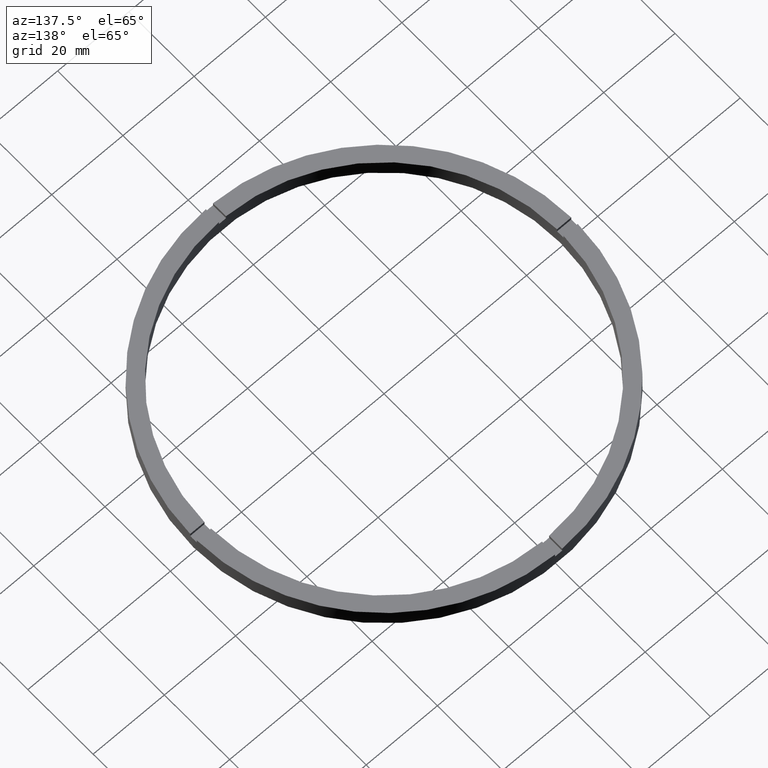
[diagram: clean part render]
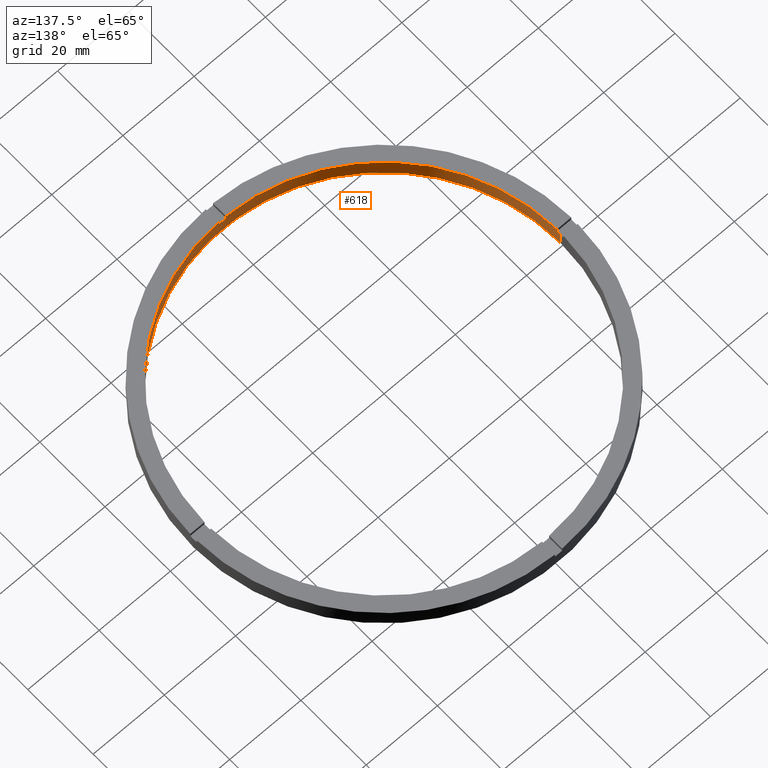
[diagram: same view with one face highlighted and labeled with its STEP entity id]
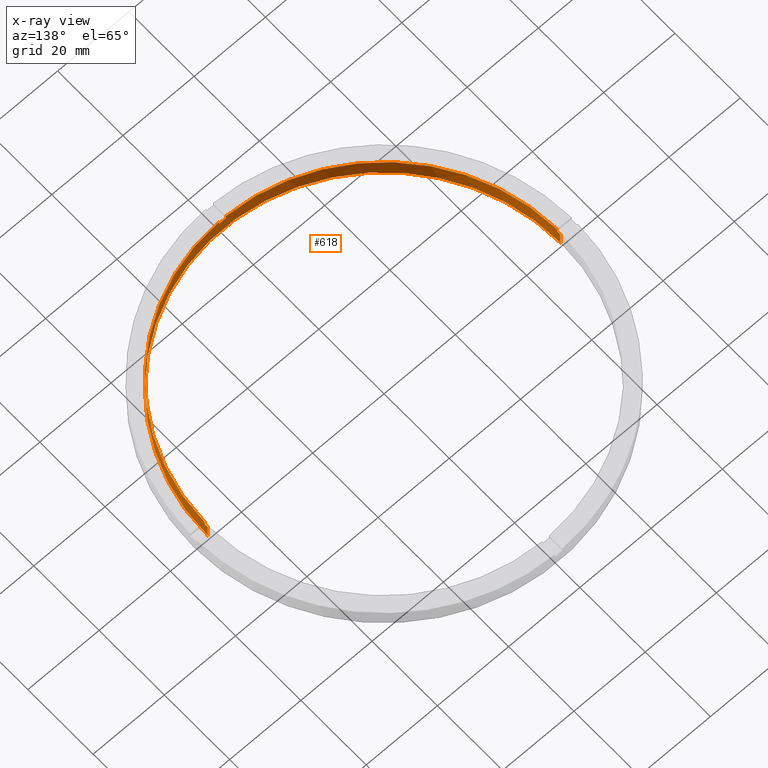
[diagram: x-ray of the same camera — body ghosted, the highlighted face saturated]
A machine part, auxiliary view. The second image highlights one B-rep face of the part: STEP entity #618.
The next image is the same camera in x-ray: the body ghosted, the highlighted face saturated — about 0% of this face is hidden behind the body in this view.
In plain terms, the highlighted cylindrical surface (partial cylindrical patch) has radius 49.5 mm, axis along (-0, -0, -1).
Its self-contained STEP definition (entity closure, byte-faithful):
#6 = EDGE_CURVE ( 'NONE', #144, #432, #218, .T. ) ;
#11 = EDGE_CURVE ( 'NONE', #717, #719, #480, .T. ) ;
#14 = DIRECTION ( 'NONE',  ( -0.000000000000000000, -0.000000000000000000, -1.000000000000000000 ) ) ;
#20 = CARTESIAN_POINT ( 'NONE',  ( 0.000000000000000000, 0.000000000000000000, 4.000000000000000000 ) ) ;
#21 = EDGE_CURVE ( 'NONE', #445, #433, #216, .T. ) ;
#25 = AXIS2_PLACEMENT_3D ( 'NONE', #409, #330, #277 ) ;
#28 = EDGE_CURVE ( 'NONE', #717, #433, #742, .T. ) ;
#78 = DIRECTION ( 'NONE',  ( -0.000000000000000000, -0.000000000000000000, -1.000000000000000000 ) ) ;
#83 = EDGE_CURVE ( 'NONE', #432, #614, #292, .T. ) ;
#89 = DIRECTION ( 'NONE',  ( 1.000000000000000000, 0.000000000000000000, 0.000000000000000000 ) ) ;
#104 = ORIENTED_EDGE ( 'NONE', *, *, #695, .F. ) ;
#113 = AXIS2_PLACEMENT_3D ( 'NONE', #513, #660, #510 ) ;
#114 = LINE ( 'NONE', #434, #124 ) ;
#117 = VECTOR ( 'NONE', #180, 1000.000000000000000 ) ;
#118 = AXIS2_PLACEMENT_3D ( 'NONE', #519, #265, #374 ) ;
#119 = CIRCLE ( 'NONE', #538, 49.50000000000000711 ) ;
#124 = VECTOR ( 'NONE', #14, 1000.000000000000000 ) ;
#133 = CYLINDRICAL_SURFACE ( 'NONE', #268, 49.50000000000000711 ) ;
#134 = CARTESIAN_POINT ( 'NONE',  ( 49.48989795907849043, -1.000000000000154765, 5.000000000000000000 ) ) ;
#144 = VERTEX_POINT ( 'NONE', #261 ) ;
#148 = CIRCLE ( 'NONE', #406, 49.50000000000000711 ) ;
#167 = ORIENTED_EDGE ( 'NONE', *, *, #593, .F. ) ;
#169 = DIRECTION ( 'NONE',  ( -0.000000000000000000, 0.000000000000000000, 1.000000000000000000 ) ) ;
#170 = ORIENTED_EDGE ( 'NONE', *, *, #350, .F. ) ;
#180 = DIRECTION ( 'NONE',  ( 0.000000000000000000, 0.000000000000000000, 1.000000000000000000 ) ) ;
#184 = CARTESIAN_POINT ( 'NONE',  ( 0.9999999999998436806, -49.48989795907849043, 5.000000000000000000 ) ) ;
#195 = ORIENTED_EDGE ( 'NONE', *, *, #21, .F. ) ;
#208 = ORIENTED_EDGE ( 'NONE', *, *, #83, .T. ) ;
#216 = LINE ( 'NONE', #262, #484 ) ;
#218 = CIRCLE ( 'NONE', #304, 49.50000000000000711 ) ;
#228 = CARTESIAN_POINT ( 'NONE',  ( -49.48989795907849043, -1.000000000000031974, 5.000000000000000000 ) ) ;
#234 = CARTESIAN_POINT ( 'NONE',  ( 0.9999999999998436806, -49.48989795907849043, 5.000000000000000000 ) ) ;
#235 = DIRECTION ( 'NONE',  ( -0.000000000000000000, -0.000000000000000000, -1.000000000000000000 ) ) ;
#244 = CARTESIAN_POINT ( 'NONE',  ( 0.000000000000000000, 0.000000000000000000, 4.000000000000000000 ) ) ;
#261 = CARTESIAN_POINT ( 'NONE',  ( 49.48989795907849043, -1.000000000000154765, 4.000000000000000000 ) ) ;
#262 = CARTESIAN_POINT ( 'NONE',  ( -1.000000000000156319, -49.48989795907849043, 5.000000000000000000 ) ) ;
#265 = DIRECTION ( 'NONE',  ( 0.000000000000000000, 0.000000000000000000, 1.000000000000000000 ) ) ;
#268 = AXIS2_PLACEMENT_3D ( 'NONE', #333, #738, #533 ) ;
#274 = DIRECTION ( 'NONE',  ( 1.000000000000000000, 0.000000000000000000, 0.000000000000000000 ) ) ;
#277 = DIRECTION ( 'NONE',  ( 1.000000000000000000, 0.000000000000000000, 0.000000000000000000 ) ) ;
#278 = CARTESIAN_POINT ( 'NONE',  ( 49.48989795907849043, -1.000000000000154765, 5.000000000000000000 ) ) ;
#279 = DIRECTION ( 'NONE',  ( -0.000000000000000000, -0.000000000000000000, -1.000000000000000000 ) ) ;
#292 = LINE ( 'NONE', #436, #562 ) ;
#304 = AXIS2_PLACEMENT_3D ( 'NONE', #20, #475, #764 ) ;
#330 = DIRECTION ( 'NONE',  ( 0.000000000000000000, 0.000000000000000000, 1.000000000000000000 ) ) ;
#332 = CARTESIAN_POINT ( 'NONE',  ( -1.000000000000156319, -49.48989795907849043, 4.000000000000000000 ) ) ;
#333 = CARTESIAN_POINT ( 'NONE',  ( 0.000000000000000000, 0.000000000000000000, 5.000000000000000000 ) ) ;
#350 = EDGE_CURVE ( 'NONE', #144, #474, #652, .T. ) ;
#354 = ORIENTED_EDGE ( 'NONE', *, *, #6, .T. ) ;
#360 = ORIENTED_EDGE ( 'NONE', *, *, #11, .F. ) ;
#367 = ORIENTED_EDGE ( 'NONE', *, *, #525, .T. ) ;
#369 = ORIENTED_EDGE ( 'NONE', *, *, #28, .T. ) ;
#373 = EDGE_LOOP ( 'NONE', ( #354, #208, #381, #167, #696, #360, #369, #195, #632, #104, #367, #170 ) ) ;
#374 = DIRECTION ( 'NONE',  ( 1.000000000000000000, 0.000000000000000000, 0.000000000000000000 ) ) ;
#381 = ORIENTED_EDGE ( 'NONE', *, *, #612, .F. ) ;
#386 = CIRCLE ( 'NONE', #25, 49.50000000000000711 ) ;
#406 = AXIS2_PLACEMENT_3D ( 'NONE', #579, #169, #89 ) ;
#408 = LINE ( 'NONE', #184, #412 ) ;
#409 = CARTESIAN_POINT ( 'NONE',  ( 0.000000000000000000, 0.000000000000000000, 5.000000000000000000 ) ) ;
#412 = VECTOR ( 'NONE', #279, 1000.000000000000000 ) ;
#432 = VERTEX_POINT ( 'NONE', #520 ) ;
#433 = VERTEX_POINT ( 'NONE', #495 ) ;
#434 = CARTESIAN_POINT ( 'NONE',  ( -49.50000000000000711, 0.000000000000000000, 5.000000000000000000 ) ) ;
#436 = CARTESIAN_POINT ( 'NONE',  ( 49.50000000000000711, 6.062001655779399300E-15, 5.000000000000000000 ) ) ;
#445 = VERTEX_POINT ( 'NONE', #332 ) ;
#452 = DIRECTION ( 'NONE',  ( 0.000000000000000000, 0.000000000000000000, 1.000000000000000000 ) ) ;
#453 = EDGE_CURVE ( 'NONE', #457, #719, #119, .T. ) ;
#457 = VERTEX_POINT ( 'NONE', #500 ) ;
#469 = DIRECTION ( 'NONE',  ( 0.000000000000000000, 0.000000000000000000, 1.000000000000000000 ) ) ;
#474 = VERTEX_POINT ( 'NONE', #134 ) ;
#475 = DIRECTION ( 'NONE',  ( 0.000000000000000000, 0.000000000000000000, 1.000000000000000000 ) ) ;
#480 = LINE ( 'NONE', #228, #745 ) ;
#484 = VECTOR ( 'NONE', #452, 1000.000000000000000 ) ;
#495 = CARTESIAN_POINT ( 'NONE',  ( -1.000000000000156319, -49.48989795907849043, 5.000000000000000000 ) ) ;
#500 = CARTESIAN_POINT ( 'NONE',  ( -49.50000000000000711, 0.000000000000000000, 4.000000000000000000 ) ) ;
#510 = DIRECTION ( 'NONE',  ( 1.000000000000000000, 0.000000000000000000, 0.000000000000000000 ) ) ;
#513 = CARTESIAN_POINT ( 'NONE',  ( 0.000000000000000000, 0.000000000000000000, 0.000000000000000000 ) ) ;
#519 = CARTESIAN_POINT ( 'NONE',  ( 0.000000000000000000, 0.000000000000000000, 5.000000000000000000 ) ) ;
#520 = CARTESIAN_POINT ( 'NONE',  ( 49.50000000000000711, 6.062001655779399300E-15, 4.000000000000000000 ) ) ;
#525 = EDGE_CURVE ( 'NONE', #735, #474, #386, .T. ) ;
#533 = DIRECTION ( 'NONE',  ( -1.000000000000000000, 0.000000000000000000, 0.000000000000000000 ) ) ;
#538 = AXIS2_PLACEMENT_3D ( 'NONE', #244, #469, #274 ) ;
#551 = CARTESIAN_POINT ( 'NONE',  ( 0.9999999999998436806, -49.48989795907849043, 4.000000000000000000 ) ) ;
#562 = VECTOR ( 'NONE', #78, 1000.000000000000000 ) ;
#579 = CARTESIAN_POINT ( 'NONE',  ( 0.000000000000000000, 0.000000000000000000, 4.000000000000000000 ) ) ;
#593 = EDGE_CURVE ( 'NONE', #457, #616, #114, .T. ) ;
#596 = CARTESIAN_POINT ( 'NONE',  ( 49.50000000000000711, 6.062001655779399300E-15, 0.000000000000000000 ) ) ;
#612 = EDGE_CURVE ( 'NONE', #616, #614, #658, .T. ) ;
#614 = VERTEX_POINT ( 'NONE', #596 ) ;
#616 = VERTEX_POINT ( 'NONE', #654 ) ;
#618 = ADVANCED_FACE ( 'NONE', ( #670 ), #133, .F. ) ;
#632 = ORIENTED_EDGE ( 'NONE', *, *, #674, .T. ) ;
#652 = LINE ( 'NONE', #278, #117 ) ;
#654 = CARTESIAN_POINT ( 'NONE',  ( -49.50000000000000711, 0.000000000000000000, 0.000000000000000000 ) ) ;
#658 = CIRCLE ( 'NONE', #113, 49.50000000000000711 ) ;
#660 = DIRECTION ( 'NONE',  ( 0.000000000000000000, 0.000000000000000000, 1.000000000000000000 ) ) ;
#670 = FACE_OUTER_BOUND ( 'NONE', #373, .T. ) ;
#674 = EDGE_CURVE ( 'NONE', #445, #732, #148, .T. ) ;
#695 = EDGE_CURVE ( 'NONE', #735, #732, #408, .T. ) ;
#696 = ORIENTED_EDGE ( 'NONE', *, *, #453, .T. ) ;
#717 = VERTEX_POINT ( 'NONE', #727 ) ;
#719 = VERTEX_POINT ( 'NONE', #781 ) ;
#727 = CARTESIAN_POINT ( 'NONE',  ( -49.48989795907849043, -1.000000000000031974, 5.000000000000000000 ) ) ;
#732 = VERTEX_POINT ( 'NONE', #551 ) ;
#735 = VERTEX_POINT ( 'NONE', #234 ) ;
#738 = DIRECTION ( 'NONE',  ( -0.000000000000000000, -0.000000000000000000, -1.000000000000000000 ) ) ;
#742 = CIRCLE ( 'NONE', #118, 49.50000000000000711 ) ;
#745 = VECTOR ( 'NONE', #235, 1000.000000000000000 ) ;
#764 = DIRECTION ( 'NONE',  ( 1.000000000000000000, 0.000000000000000000, 0.000000000000000000 ) ) ;
#781 = CARTESIAN_POINT ( 'NONE',  ( -49.48989795907849043, -1.000000000000031974, 4.000000000000000000 ) ) ;